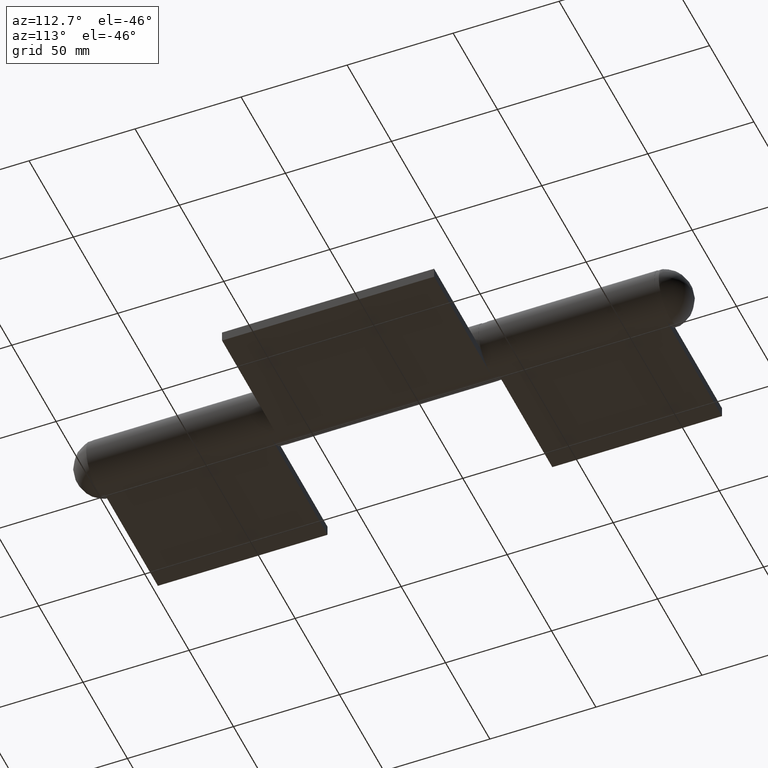
[diagram: clean part render]
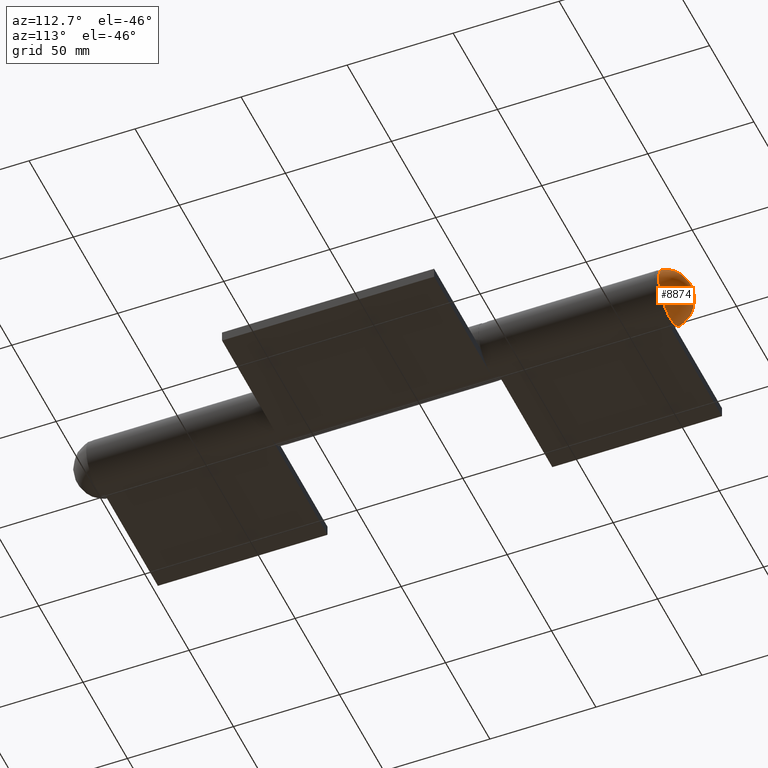
[diagram: same view with one face highlighted and labeled with its STEP entity id]
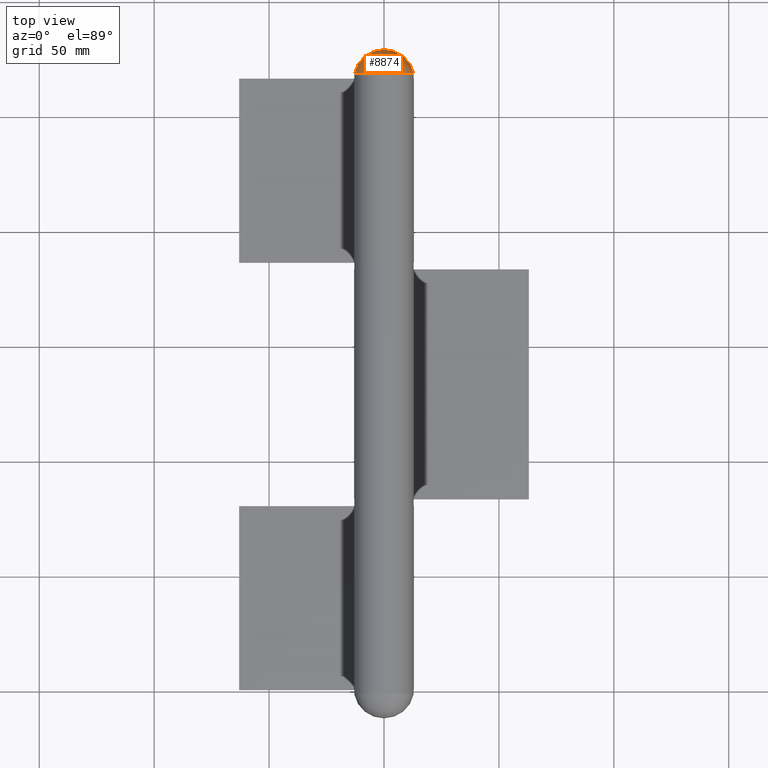
[diagram: same view with one face highlighted and labeled with its STEP entity id]
A machine part, auxiliary view. The second image highlights one B-rep face of the part: STEP entity #8874.
A second angle (top view) of the same face is appended — the face is thin or edge-on in the first view.
In plain terms, the highlighted spherical surface has radius 13.2976 mm.
Its self-contained STEP definition (entity closure, byte-faithful):
#262 = EDGE_CURVE ( 'NONE', #3247, #3247, #5983, .T. ) ;
#273 = DIRECTION ( 'NONE',  ( 0.000000000000000000, 0.000000000000000000, 1.000000000000000000 ) ) ;
#2988 = FACE_OUTER_BOUND ( 'NONE', #11053, .T. ) ;
#3247 = VERTEX_POINT ( 'NONE', #10856 ) ;
#3277 = CARTESIAN_POINT ( 'NONE',  ( 0.000000000000000000, 115.9523809523809632, 0.000000000000000000 ) ) ;
#3934 = DIRECTION ( 'NONE',  ( -0.000000000000000000, -1.000000000000000000, -0.000000000000000000 ) ) ;
#5983 = CIRCLE ( 'NONE', #12522, 13.00000000000000000 ) ;
#6404 = DIRECTION ( 'NONE',  ( 1.000000000000000000, 0.000000000000000000, 0.000000000000000000 ) ) ;
#6775 = DIRECTION ( 'NONE',  ( 0.000000000000000000, 0.000000000000000000, -1.000000000000000000 ) ) ;
#6895 = CARTESIAN_POINT ( 'NONE',  ( 0.000000000000000000, 118.7500000000000000, 0.000000000000000000 ) ) ;
#8005 = SPHERICAL_SURFACE ( 'NONE', #9937, 13.29761904761904390 ) ;
#8874 = ADVANCED_FACE ( 'NONE', ( #2988 ), #8005, .T. ) ;
#9515 = ORIENTED_EDGE ( 'NONE', *, *, #262, .F. ) ;
#9937 = AXIS2_PLACEMENT_3D ( 'NONE', #3277, #273, #6404 ) ;
#10856 = CARTESIAN_POINT ( 'NONE',  ( 0.000000000000000000, 118.7500000000000000, -13.00000000000000000 ) ) ;
#11053 = EDGE_LOOP ( 'NONE', ( #9515 ) ) ;
#12522 = AXIS2_PLACEMENT_3D ( 'NONE', #6895, #3934, #6775 ) ;